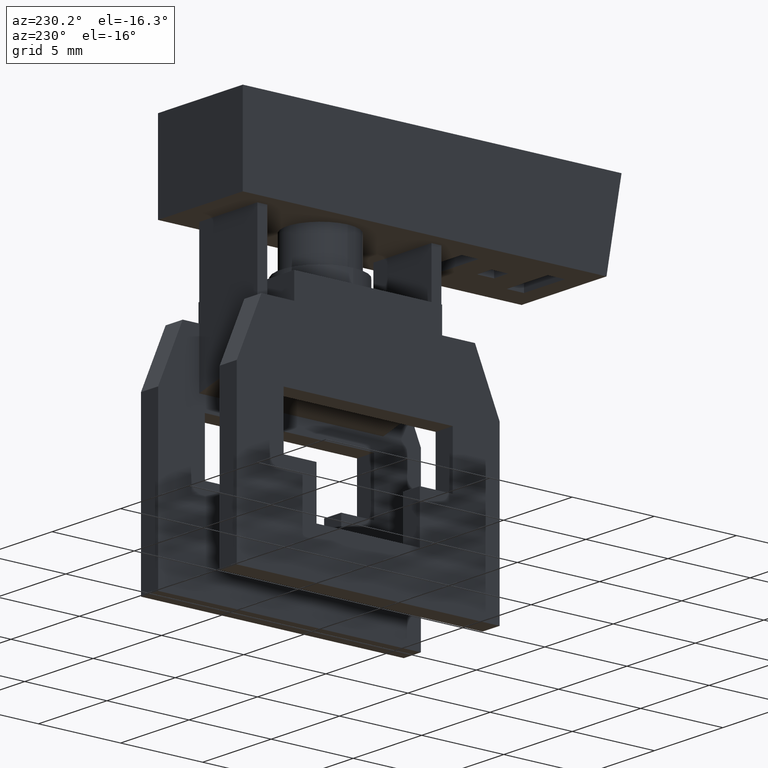
[diagram: clean part render]
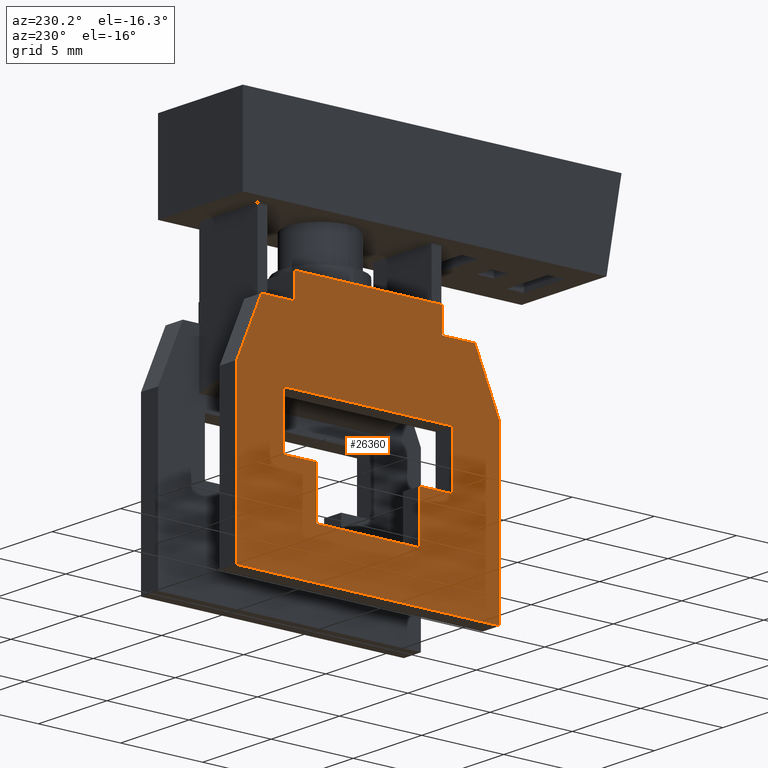
[diagram: same view with one face highlighted and labeled with its STEP entity id]
A machine part, auxiliary view. The second image highlights one B-rep face of the part: STEP entity #26360.
In plain terms, the highlighted planar face has unit normal (-1, 0, 0).
Its self-contained STEP definition (entity closure, byte-faithful):
#15540=CARTESIAN_POINT('',(-7.,20.5,12.5));
#15550=VERTEX_POINT('',#15540);
#15580=CARTESIAN_POINT('',(-7.,20.5,0.));
#15590=DIRECTION('',(0.,0.,-1.));
#15600=VECTOR('',#15590,1.);
#15610=LINE('',#15580,#15600);
#15620=CARTESIAN_POINT('',(-7.,20.5,3.5));
#15630=VERTEX_POINT('',#15620);
#15640=EDGE_CURVE('',#15550,#15630,#15610,.T.);
#16290=CARTESIAN_POINT('',(-7.,19.,12.5));
#16300=VERTEX_POINT('',#16290);
#16330=CARTESIAN_POINT('',(-7.,0.,12.5));
#16340=DIRECTION('',(0.,-1.,1.83697019872103E-16));
#16350=VECTOR('',#16340,1.);
#16360=LINE('',#16330,#16350);
#16370=EDGE_CURVE('',#15550,#16300,#16360,.T.);
#17430=CARTESIAN_POINT('',(-7.,0.,3.50000000000001));
#17440=DIRECTION('',(0.,1.,-1.83697019872103E-16));
#17450=VECTOR('',#17440,1.);
#17460=LINE('',#17430,#17450);
#17470=CARTESIAN_POINT('',(-7.,19.,3.5));
#17480=VERTEX_POINT('',#17470);
#17490=EDGE_CURVE('',#17480,#15630,#17460,.T.);
#24870=CARTESIAN_POINT('',(-7.,14.7,2.84999999999999));
#24880=VERTEX_POINT('',#24870);
#24910=CARTESIAN_POINT('',(-7.,14.7,0.));
#24920=DIRECTION('',(0.,0.,-1.));
#24930=VECTOR('',#24920,1.);
#24940=LINE('',#24910,#24930);
#24950=CARTESIAN_POINT('',(-7.,14.7,13.15));
#24960=VERTEX_POINT('',#24950);
#24970=EDGE_CURVE('',#24960,#24880,#24940,.T.);
#25150=CARTESIAN_POINT('',(-7.,5.5,0.));
#25160=DIRECTION('',(-1.,0.,0.));
#25170=DIRECTION('',(0.,1.,0.));
#25180=AXIS2_PLACEMENT_3D('',#25150,#25160,#25170);
#25190=PLANE('',#25180);
#25200=CARTESIAN_POINT('',(-7.,0.,4.85));
#25210=DIRECTION('',(0.,-1.,1.83697019872103E-16));
#25220=VECTOR('',#25210,1.);
#25230=LINE('',#25200,#25220);
#25240=CARTESIAN_POINT('',(-7.,11.4,4.84999999999999));
#25250=VERTEX_POINT('',#25240);
#25260=CARTESIAN_POINT('',(-7.,8.40000000000001,4.84999999999999));
#25270=VERTEX_POINT('',#25260);
#25280=EDGE_CURVE('',#25250,#25270,#25230,.T.);
#25290=ORIENTED_EDGE('',*,*,#25280,.F.);
#25300=CARTESIAN_POINT('',(-7.,8.40000000000001,0.));
#25310=DIRECTION('',(0.,1.83697019872103E-16,1.));
#25320=VECTOR('',#25310,1.);
#25330=LINE('',#25300,#25320);
#25340=CARTESIAN_POINT('',(-7.,8.40000000000001,11.15));
#25350=VERTEX_POINT('',#25340);
#25360=EDGE_CURVE('',#25270,#25350,#25330,.T.);
#25370=ORIENTED_EDGE('',*,*,#25360,.F.);
#25380=CARTESIAN_POINT('',(-7.,0.,11.15));
#25390=DIRECTION('',(0.,1.,-1.83697019872103E-16));
#25400=VECTOR('',#25390,1.);
#25410=LINE('',#25380,#25400);
#25420=CARTESIAN_POINT('',(-7.,11.4,11.15));
#25430=VERTEX_POINT('',#25420);
#25440=EDGE_CURVE('',#25350,#25430,#25410,.T.);
#25450=ORIENTED_EDGE('',*,*,#25440,.F.);
#25460=CARTESIAN_POINT('',(-7.,11.4,0.));
#25470=DIRECTION('',(0.,1.83697019872103E-16,1.));
#25480=VECTOR('',#25470,1.);
#25490=LINE('',#25460,#25480);
#25500=CARTESIAN_POINT('',(-7.,11.4,13.15));
#25510=VERTEX_POINT('',#25500);
#25520=EDGE_CURVE('',#25430,#25510,#25490,.T.);
#25530=ORIENTED_EDGE('',*,*,#25520,.F.);
#25540=CARTESIAN_POINT('',(-7.,5.5,13.15));
#25550=DIRECTION('',(0.,1.,-1.83697019872103E-16));
#25560=VECTOR('',#25550,1.);
#25570=LINE('',#25540,#25560);
#25580=EDGE_CURVE('',#25510,#24960,#25570,.T.);
#25590=ORIENTED_EDGE('',*,*,#25580,.F.);
#25600=ORIENTED_EDGE('',*,*,#24970,.F.);
#25610=CARTESIAN_POINT('',(-7.,5.5,2.85));
#25620=DIRECTION('',(0.,-1.,1.83697019872103E-16));
#25630=VECTOR('',#25620,1.);
#25640=LINE('',#25610,#25630);
#25650=CARTESIAN_POINT('',(-7.,11.4,2.84999999999999));
#25660=VERTEX_POINT('',#25650);
#25670=EDGE_CURVE('',#24880,#25660,#25640,.T.);
#25680=ORIENTED_EDGE('',*,*,#25670,.F.);
#25690=CARTESIAN_POINT('',(-7.,11.4,0.));
#25700=DIRECTION('',(0.,1.83697019872103E-16,1.));
#25710=VECTOR('',#25700,1.);
#25720=LINE('',#25690,#25710);
#25730=EDGE_CURVE('',#25660,#25250,#25720,.T.);
#25740=ORIENTED_EDGE('',*,*,#25730,.F.);
#25750=EDGE_LOOP('',(#25740,#25680,#25600,#25590,#25530,#25450,#25370,
#25290));
#25760=FACE_BOUND('',#25750,.T.);
#25770=CARTESIAN_POINT('',(-7.,5.5,0.));
#25780=DIRECTION('',(0.,0.,1.));
#25790=VECTOR('',#25780,1.);
#25800=LINE('',#25770,#25790);
#25810=CARTESIAN_POINT('',(-7.,5.5,0.));
#25820=VERTEX_POINT('',#25810);
#25830=CARTESIAN_POINT('',(-7.,5.5,16.));
#25840=VERTEX_POINT('',#25830);
#25850=EDGE_CURVE('',#25820,#25840,#25800,.T.);
#25860=ORIENTED_EDGE('',*,*,#25850,.T.);
#25870=CARTESIAN_POINT('',(-7.,0.,0.));
#25880=DIRECTION('',(0.,1.,0.));
#25890=VECTOR('',#25880,1.);
#25900=LINE('',#25870,#25890);
#25910=CARTESIAN_POINT('',(-7.,15.4662214512644,0.));
#25920=VERTEX_POINT('',#25910);
#25930=EDGE_CURVE('',#25820,#25920,#25900,.T.);
#25940=ORIENTED_EDGE('',*,*,#25930,.F.);
#25950=CARTESIAN_POINT('',(-7.,5.5,-4.23041001882971));
#25960=DIRECTION('',(0.,0.920504853452439,0.390731128489277));
#25970=VECTOR('',#25960,1.);
#25980=LINE('',#25950,#25970);
#25990=CARTESIAN_POINT('',(-7.,19.,1.5));
#26000=VERTEX_POINT('',#25990);
#26010=EDGE_CURVE('',#25920,#26000,#25980,.T.);
#26020=ORIENTED_EDGE('',*,*,#26010,.F.);
#26030=CARTESIAN_POINT('',(-7.,19.,0.));
#26040=DIRECTION('',(0.,1.83697019872103E-16,1.));
#26050=VECTOR('',#26040,1.);
#26060=LINE('',#26030,#26050);
#26070=EDGE_CURVE('',#26000,#17480,#26060,.T.);
#26080=ORIENTED_EDGE('',*,*,#26070,.F.);
#26090=ORIENTED_EDGE('',*,*,#17490,.F.);
#26100=ORIENTED_EDGE('',*,*,#15640,.T.);
#26110=ORIENTED_EDGE('',*,*,#16370,.F.);
#26120=CARTESIAN_POINT('',(-7.,19.,0.));
#26130=DIRECTION('',(0.,1.83697019872103E-16,1.));
#26140=VECTOR('',#26130,1.);
#26150=LINE('',#26120,#26140);
#26160=CARTESIAN_POINT('',(-7.,19.,14.5));
#26170=VERTEX_POINT('',#26160);
#26180=EDGE_CURVE('',#16300,#26170,#26150,.T.);
#26190=ORIENTED_EDGE('',*,*,#26180,.F.);
#26200=CARTESIAN_POINT('',(-7.,5.5,20.2304100188297));
#26210=DIRECTION('',(0.,-0.920504853452439,0.390731128489276));
#26220=VECTOR('',#26210,1.);
#26230=LINE('',#26200,#26220);
#26240=CARTESIAN_POINT('',(-7.,15.4662214512644,16.));
#26250=VERTEX_POINT('',#26240);
#26260=EDGE_CURVE('',#26170,#26250,#26230,.T.);
#26270=ORIENTED_EDGE('',*,*,#26260,.F.);
#26280=CARTESIAN_POINT('',(-7.,0.,16.));
#26290=DIRECTION('',(0.,-1.,0.));
#26300=VECTOR('',#26290,1.);
#26310=LINE('',#26280,#26300);
#26320=EDGE_CURVE('',#26250,#25840,#26310,.T.);
#26330=ORIENTED_EDGE('',*,*,#26320,.F.);
#26340=EDGE_LOOP('',(#26330,#26270,#26190,#26110,#26100,#26090,#26080,
#26020,#25940,#25860));
#26350=FACE_OUTER_BOUND('',#26340,.T.);
#26360=ADVANCED_FACE('',(#25760,#26350),#25190,.T.);